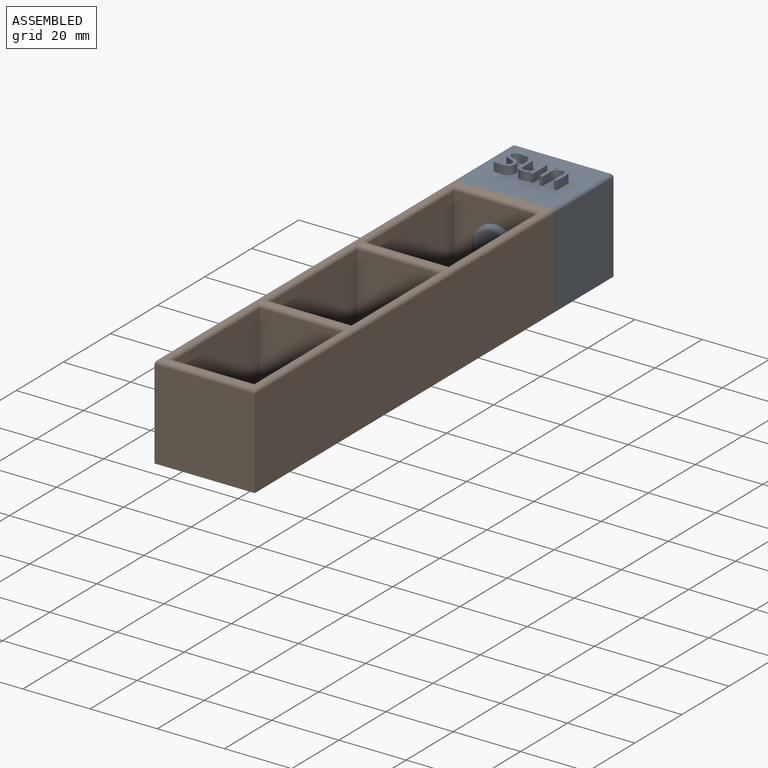
[diagram: assembled view]
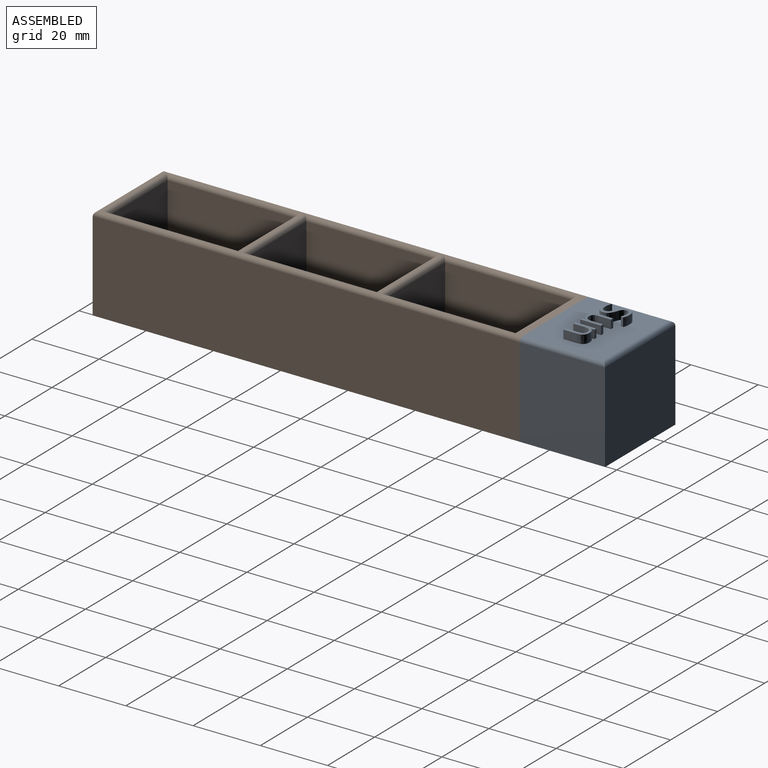
[diagram: assembled view, second angle]
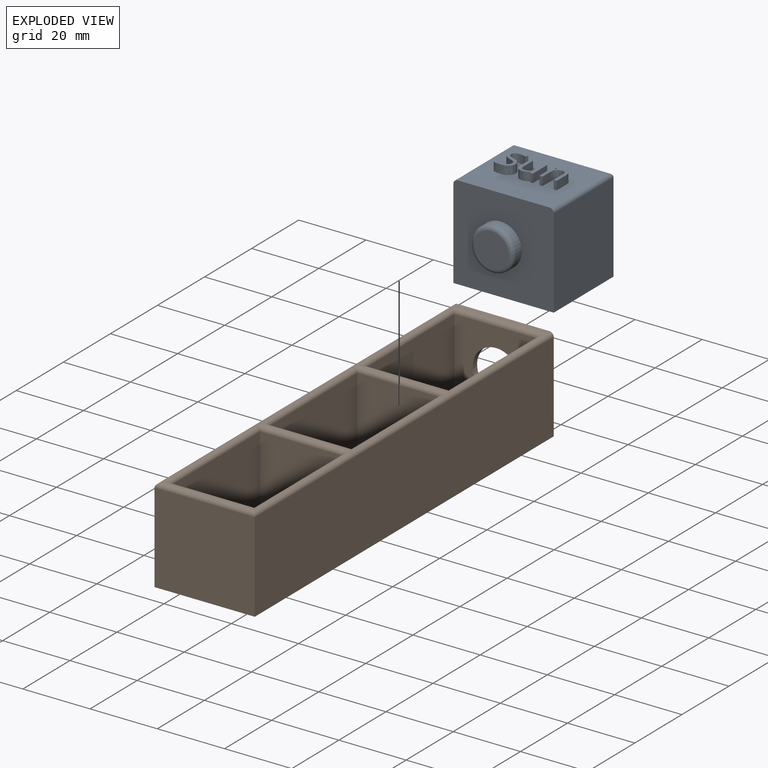
[diagram: exploded view]
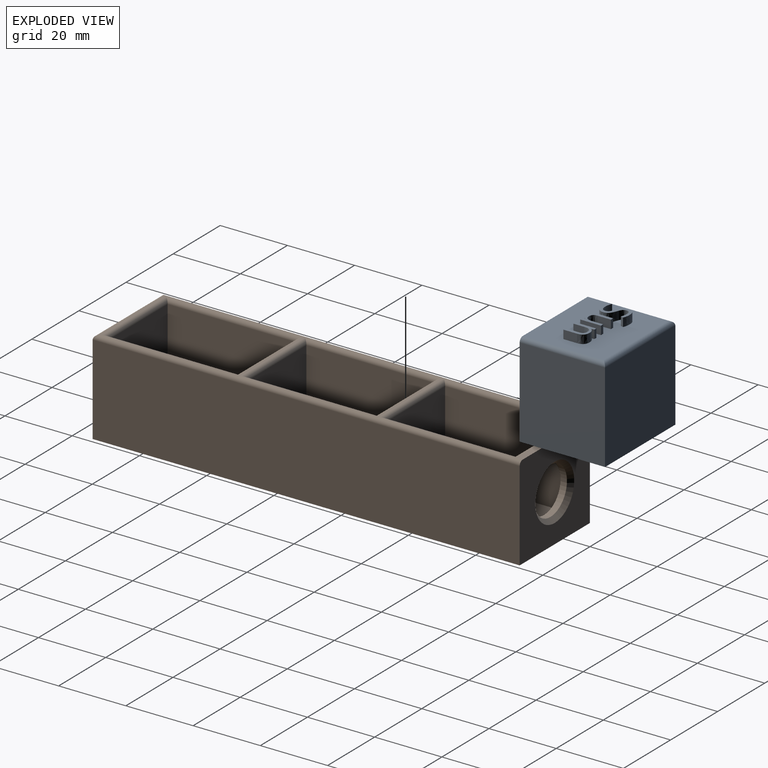
[diagram: exploded view, second angle]
ASSEMBLY  parts=2 mates=3
PART A: 74 faces, bbox 29.8x29.2x30.5 mm
  f0: plane 27.31x24.13mm, normal (0,0,1), area 615.4mm2, adj f4,f6,f7,f8,f9,f10,f11,f12
  f1: plane 26.67x25.4mm, normal (1,0,0), area 677.4mm2, adj f2,f4,f5,f68
  f2: plane 29.85x26.67mm, normal (0,1,0), area 796mm2, adj f1,f3,f5,f69
  f3: plane 26.67x25.4mm, normal (-1,0,0), area 677.4mm2, adj f2,f4,f5,f70
  f4: plane 29.85x27.94mm, normal (0,-1,0), area 706.5mm2, adj f0,f1,f3,f5,f68,f70,f71
  f5: plane 29.85x25.4mm, normal (0,0,-1), area 758.1mm2, adj f1,f2,f3,f4
  f6: extruded ~2.54x1.7mm, area 4.9mm2, adj f0,f7,f30,f31
  f7: extruded ~2.54x1.37mm, area 3.8mm2, adj f0,f6,f8,f31
  f8: extruded ~2.54x1.78mm, area 5.2mm2, adj f0,f7,f9,f31
  f9: extruded ~2.54x1.15mm, area 3.2mm2, adj f0,f8,f10,f31
  f10: extruded ~2.54x0.53mm, area 1.9mm2, adj f0,f9,f11,f31
  f11: extruded ~2.54x0.7mm, area 1.8mm2, adj f0,f10,f12,f31
  f12: extruded ~2.54x0.91mm, area 2.6mm2, adj f0,f11,f13,f31
  f13: extruded ~2.54x1.19mm, area 3.2mm2, adj f0,f12,f14,f31
  f14: extruded ~2.54x1.98mm, area 5.2mm2, adj f0,f13,f15,f31
  f15: plane 2.54x0.83mm, normal (0.94,-0.34,0), area 2.2mm2, adj f0,f14,f16,f31
  f16: extruded ~2.54x2.26mm, area 5.9mm2, adj f0,f15,f17,f31
  f17: extruded ~2.54x1.89mm, area 5.1mm2, adj f0,f16,f18,f31
  f18: extruded ~2.54x1.52mm, area 4.4mm2, adj f0,f17,f19,f31
  f19: extruded ~2.54x1.47mm, area 4mm2, adj f0,f18,f20,f31
  f20: extruded ~2.54x1.64mm, area 4.9mm2, adj f0,f19,f21,f31
  f21: extruded ~2.54x1.23mm, area 3.4mm2, adj f0,f20,f22,f31
  f22: extruded ~2.54x0.58mm, area 2mm2, adj f0,f21,f23,f31
  f23: extruded ~2.54x0.7mm, area 1.9mm2, adj f0,f22,f24,f31
  f24: extruded ~2.54x1.01mm, area 3mm2, adj f0,f23,f25,f31
  f25: extruded ~2.54x1.44mm, area 3.8mm2, adj f0,f24,f26,f31
  f26: extruded ~2.54x1.18mm, area 3mm2, adj f0,f25,f27,f31
  f27: extruded ~2.54x1.11mm, area 2.9mm2, adj f0,f26,f28,f31
  f28: plane 2.54x0.92mm, normal (-1,0,0), area 2.3mm2, adj f0,f27,f29,f31
  f29: extruded ~2.54x2.25mm, area 5.9mm2, adj f0,f28,f30,f31
  f30: extruded ~2.54x2.14mm, area 5.8mm2, adj f0,f6,f29,f31
  f31: plane 8.47x5.18mm, normal (0,0,1), area 15.7mm2, adj f6,f7,f8,f9,f10,f11,f12,f13
  f32: plane 4.01x2.54mm, normal (1,0,0), area 10.2mm2, adj f0,f33,f48,f49
  f33: plane 2.54x0.95mm, normal (0,1,0), area 2.4mm2, adj f0,f32,f34,f49
  f34: plane 4.04x2.54mm, normal (-1,0,0), area 10.3mm2, adj f0,f33,f35,f49
  f35: extruded ~2.54x1.71mm, area 4.7mm2, adj f0,f34,f36,f49
  f36: extruded ~2.54x1.69mm, area 4.6mm2, adj f0,f35,f37,f49
  f37: extruded ~2.54x1.17mm, area 3mm2, adj f0,f36,f38,f49
  f38: extruded ~2.54x0.8mm, area 2.7mm2, adj f0,f37,f39,f49
  f39: plane 2.54x0.05mm, normal (0,-1,0), area 0.1mm2, adj f0,f38,f40,f49
  f40: plane 2.54x0.83mm, normal (-0.99,-0.16,0), area 2.1mm2, adj f0,f39,f41,f49
  f41: plane 2.54x0.77mm, normal (0,-1,0), area 2mm2, adj f0,f40,f42,f49
  f42: plane 6.18x2.54mm, normal (1,0,0), area 15.7mm2, adj f0,f41,f43,f49
  f43: plane 2.54x0.94mm, normal (0,1,0), area 2.4mm2, adj f0,f42,f44,f49
  f44: plane 3.25x2.54mm, normal (-1,0,0), area 8.2mm2, adj f0,f43,f45,f49
  f45: extruded ~2.54x1.73mm, area 4.6mm2, adj f0,f44,f46,f49
  f46: extruded ~2.54x1.42mm, area 4mm2, adj f0,f45,f47,f49
  f47: extruded ~2.54x1.08mm, area 3mm2, adj f0,f46,f48,f49
  f48: extruded ~2.54x1.13mm, area 3.1mm2, adj f0,f32,f47,f49
  f49: plane 6.29x5.17mm, normal (0,0,1), area 13.9mm2, adj f32,f33,f34,f35,f36,f37,f38,f39
  f50: plane 4x2.54mm, normal (-1,0,0), area 10.1mm2, adj f0,f51,f66,f67
  f51: plane 2.54x0.94mm, normal (0,-1,0), area 2.4mm2, adj f0,f50,f52,f67
  f52: plane 4.03x2.54mm, normal (1,0,0), area 10.2mm2, adj f0,f51,f53,f67
  f53: extruded ~2.54x1.72mm, area 4.7mm2, adj f0,f52,f54,f67
  f54: extruded ~2.54x1.68mm, area 4.6mm2, adj f0,f53,f55,f67
  f55: extruded ~2.54x1.16mm, area 3mm2, adj f0,f54,f56,f67
  f56: extruded ~2.54x0.81mm, area 2.8mm2, adj f0,f55,f57,f67
  f57: plane 2.54x0.05mm, normal (0,1,0), area 0.1mm2, adj f0,f56,f58,f67
  f58: plane 2.54x0.85mm, normal (0.98,0.18,0), area 2.2mm2, adj f0,f57,f59,f67
  f59: plane 2.54x0.76mm, normal (0,1,0), area 1.9mm2, adj f0,f58,f60,f67
  f60: plane 6.18x2.54mm, normal (-1,0,0), area 15.7mm2, adj f0,f59,f61,f67
  f61: plane 2.54x0.94mm, normal (0,-1,0), area 2.4mm2, adj f0,f60,f62,f67
  f62: plane 3.24x2.54mm, normal (1,0,0), area 8.2mm2, adj f0,f61,f63,f67
  f63: extruded ~2.54x1.73mm, area 4.6mm2, adj f0,f62,f64,f67
  f64: extruded ~2.54x1.42mm, area 4mm2, adj f0,f63,f65,f67
  f65: extruded ~2.54x1.08mm, area 3mm2, adj f0,f64,f66,f67
  f66: extruded ~2.54x1.13mm, area 3.1mm2, adj f0,f50,f65,f67
  f67: plane 6.29x5.16mm, normal (0,0,1), area 13.8mm2, adj f50,f51,f52,f53,f54,f55,f56,f57
  f68: cylinder r=1.27mm len=25.4mm, axis (0,-1,0), area 49.8mm2, adj f0,f1,f4,f69
  f69: cylinder r=1.27mm len=29.85mm, axis (1,0,0), area 57.7mm2, adj f0,f2,f68,f70
  f70: cylinder r=1.27mm len=25.4mm, axis (0,1,0), area 49.8mm2, adj f0,f3,f4,f69
  f71: cylinder r=6.35mm len=12.7mm, axis (0,1,0), area 101.3mm2, adj f4,f73
  f72: plane 10.16x10.16mm, normal (0,-1,0), area 81.1mm2, adj f73
  f73: torus R=5.08mm, axis (0,-1,0), area 73.8mm2, adj f71,f72
PART B: 35 faces, bbox 29.8x127x27.9 mm
  f0: plane 27.31x0.64mm, normal (0,0,1), area 17.3mm2, adj f26,f27,f31,f32
  f1: plane 27.31x0.64mm, normal (0,0,1), area 17.3mm2, adj f26,f28,f29,f32
  f2: plane 27.31x0.64mm, normal (0,0,1), area 17.3mm2, adj f26,f30,f32,f33
  f3: plane 27.31x1.91mm, normal (0,0,1), area 52mm2, adj f4,f26,f32,f34
  f4: plane 29.85x27.94mm, normal (0,-1,0), area 619.1mm2, adj f3,f5,f7,f8,f10,f26,f32
  f5: plane 127x26.67mm, normal (1,0,0), area 3387.1mm2, adj f4,f6,f8,f26
  f6: plane 29.85x26.67mm, normal (0,1,0), area 796mm2, adj f5,f7,f8,f31
  f7: plane 127x26.67mm, normal (-1,0,0), area 3387.1mm2, adj f4,f6,f8,f32
  f8: plane 127x29.85mm, normal (0,0,-1), area 3790.3mm2, adj f4,f5,f6,f7
  f9: cylinder r=6.99mm len=13.97mm, axis (0,-1,0), area 83.6mm2, adj f10,f11
  f10: cone r=6.99mm half-angle=45deg, axis (0,-1,0), area 86mm2, adj f4,f9
  f11: plane 24.77x24.13mm, normal (0,1,0), area 444.3mm2, adj f9,f13,f14,f15,f34
  f12: plane 24.77x24.13mm, normal (0,-1,0), area 597.6mm2, adj f13,f14,f15,f33
  f13: plane 38.1x24.13mm, normal (1,0,0), area 919.4mm2, adj f11,f12,f15,f32
  f14: plane 38.1x24.13mm, normal (-1,0,0), area 919.4mm2, adj f11,f12,f15,f26
  f15: plane 38.1x24.77mm, normal (0,0,1), area 943.5mm2, adj f11,f12,f13,f14
  f16: plane 24.77x24.13mm, normal (0,-1,0), area 597.6mm2, adj f17,f19,f20,f29
  f17: plane 38.1x24.13mm, normal (1,0,0), area 919.4mm2, adj f16,f18,f20,f32
  f18: plane 24.77x24.13mm, normal (0,1,0), area 597.6mm2, adj f17,f19,f20,f30
  f19: plane 38.1x24.13mm, normal (-1,0,0), area 919.4mm2, adj f16,f18,f20,f26
  f20: plane 38.1x24.77mm, normal (0,0,1), area 943.5mm2, adj f16,f17,f18,f19
  f21: plane 24.77x24.13mm, normal (0,-1,0), area 597.6mm2, adj f22,f24,f25,f27
  f22: plane 38.1x24.13mm, normal (1,0,0), area 919.4mm2, adj f21,f23,f25,f32
  f23: plane 24.77x24.13mm, normal (0,1,0), area 597.6mm2, adj f22,f24,f25,f28
  f24: plane 38.1x24.13mm, normal (-1,0,0), area 919.4mm2, adj f21,f23,f25,f26
  f25: plane 38.1x24.77mm, normal (0,0,1), area 943.5mm2, adj f21,f22,f23,f24
  f26: cylinder r=1.27mm len=127mm, axis (0,-1,0), area 486mm2, adj f0,f1,f2,f3,f4,f5,f14,f19
  f27: cylinder r=1.27mm len=27.31mm, axis (1,0,0), area 51.2mm2, adj f0,f21,f26,f32
  f28: cylinder r=1.27mm len=27.31mm, axis (-1,0,0), area 51.2mm2, adj f1,f23,f26,f32
  f29: cylinder r=1.27mm len=27.31mm, axis (1,0,0), area 51.2mm2, adj f1,f16,f26,f32
  f30: cylinder r=1.27mm len=27.31mm, axis (-1,0,0), area 51.2mm2, adj f2,f18,f26,f32
  f31: cylinder r=1.27mm len=29.85mm, axis (1,0,0), area 57.7mm2, adj f0,f6,f26,f32
  f32: cylinder r=1.27mm len=127mm, axis (0,1,0), area 486mm2, adj f0,f1,f2,f3,f4,f7,f13,f17
  f33: cylinder r=1.27mm len=27.31mm, axis (1,0,0), area 51.2mm2, adj f2,f12,f26,f32
  f34: cylinder r=1.27mm len=27.31mm, axis (-1,0,0), area 51.2mm2, adj f3,f11,f26,f32
PLACE A t=(-23.71,-26.33,-19.79)mm
PLACE B rot(axis=(0,0,1),180deg) t=(-23.71,-102.53,-19.79)mm
MATE planar B.f8 <-> A.f5  axis (0,0,-1) through (-23.71,-102.53,-19.79)mm
MATE planar B.f7 <-> A.f1  axis (1,0,0) through (-8.79,-102.53,-6.45)mm
MATE planar B.f4 <-> A.f4  axis (0,1,0) through (-23.71,-39.03,-5.83)mm
